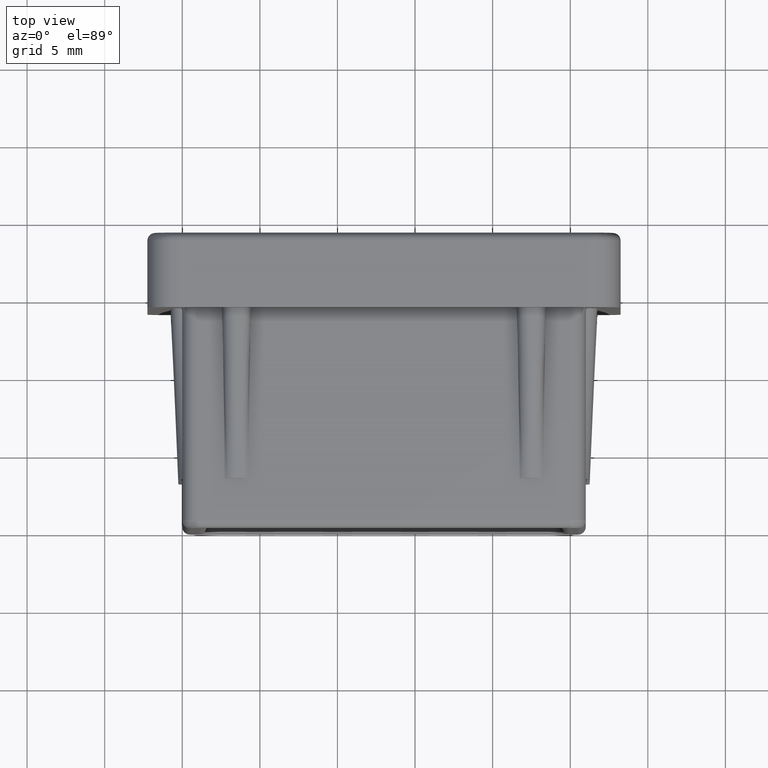
[diagram: clean part render]
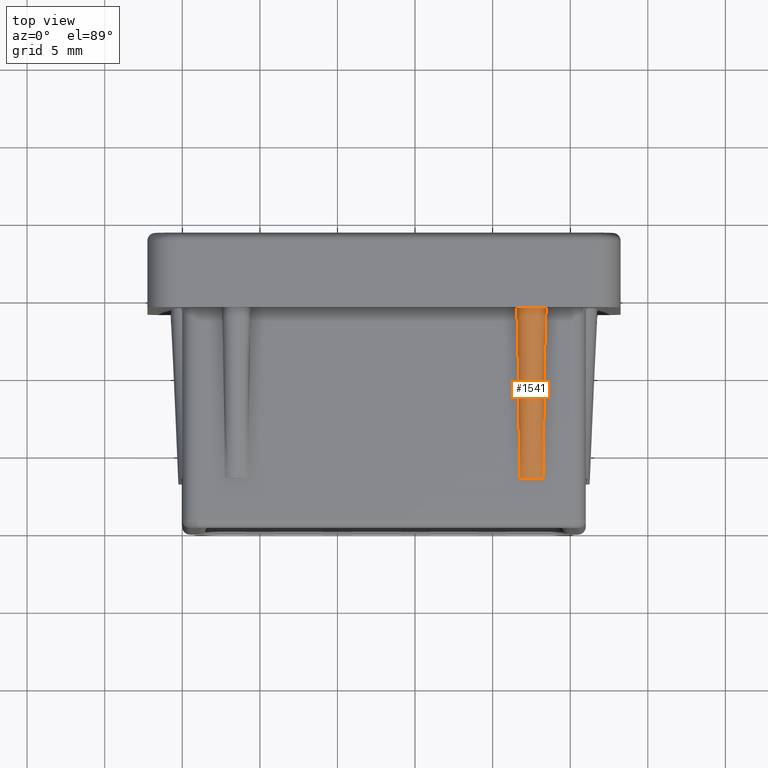
[diagram: same view with one face highlighted and labeled with its STEP entity id]
A machine part, top view. The second image highlights one B-rep face of the part: STEP entity #1541.
In plain terms, the highlighted face is a freeform B-spline surface patch.
Its self-contained STEP definition (entity closure, byte-faithful):
#20=B_SPLINE_SURFACE_WITH_KNOTS('',3,3,((#2791,#2792,#2793,#2794),(#2795,
#2796,#2797,#2798),(#2799,#2800,#2801,#2802),(#2803,#2804,#2805,#2806),
(#2807,#2808,#2809,#2810),(#2811,#2812,#2813,#2814),(#2815,#2816,#2817,
#2818),(#2819,#2820,#2821,#2822),(#2823,#2824,#2825,#2826),(#2827,#2828,
#2829,#2830),(#2831,#2832,#2833,#2834)),.UNSPECIFIED.,.F.,.F.,.F.,(4,1,
1,1,1,1,1,1,4),(4,4),(0.,0.142857142857143,0.285714285714286,0.428571428571429,
0.571428571428571,0.714285714285714,0.857142857142857,0.892857142857143,
1.),(0.,1.),.UNSPECIFIED.);
#26=B_SPLINE_CURVE_WITH_KNOTS('',3,(#2577,#2578,#2579,#2580,#2581,#2582,
#2583,#2584,#2585,#2586,#2587),.UNSPECIFIED.,.F.,.F.,(4,1,1,1,1,1,1,1,4),
(-1.,-0.892857142857143,-0.857142857142857,-0.714285714285714,-0.571428571428571,
-0.428571428571429,-0.285714285714286,-0.142857142857143,0.),
 .UNSPECIFIED.);
#115=LINE('',#2311,#247);
#117=LINE('',#2315,#249);
#247=VECTOR('',#1810,11.001022679733);
#249=VECTOR('',#1812,11.001022679733);
#444=FACE_OUTER_BOUND('',#538,.T.);
#538=EDGE_LOOP('',(#1345,#1346,#1347,#1348));
#645=CIRCLE('',#1693,1.25);
#690=VERTEX_POINT('',#2308);
#691=VERTEX_POINT('',#2310);
#692=VERTEX_POINT('',#2312);
#693=VERTEX_POINT('',#2314);
#845=EDGE_CURVE('',#690,#691,#115,.T.);
#847=EDGE_CURVE('',#692,#693,#117,.T.);
#971=EDGE_CURVE('',#693,#690,#26,.T.);
#984=EDGE_CURVE('',#691,#692,#645,.T.);
#1345=ORIENTED_EDGE('',*,*,#971,.F.);
#1346=ORIENTED_EDGE('',*,*,#847,.F.);
#1347=ORIENTED_EDGE('',*,*,#984,.F.);
#1348=ORIENTED_EDGE('',*,*,#845,.F.);
#1541=ADVANCED_FACE('',(#444),#20,.T.);
#1693=AXIS2_PLACEMENT_3D('',#2790,#2079,#2080);
#1810=DIRECTION('',(-0.0136350959694265,-0.999907037757963,-2.0183996650975E-16));
#1812=DIRECTION('',(-0.0136350959694269,0.999907037757963,-2.0183996650975E-16));
#2079=DIRECTION('center_axis',(0.,-1.,0.));
#2080=DIRECTION('ref_axis',(0.600000000000001,0.,0.799999999999999));
#2308=CARTESIAN_POINT('',(23.4,14.2,13.));
#2310=CARTESIAN_POINT('',(23.25,3.2,13.));
#2311=CARTESIAN_POINT('',(23.4,14.2,13.));
#2312=CARTESIAN_POINT('',(21.75,3.2,13.));
#2314=CARTESIAN_POINT('',(21.6,14.2,13.));
#2315=CARTESIAN_POINT('',(21.6,14.2,13.));
#2577=CARTESIAN_POINT('Ctrl Pts',(21.6,14.2,13.));
#2578=CARTESIAN_POINT('Ctrl Pts',(21.5592887492258,14.2,13.121727992348));
#2579=CARTESIAN_POINT('Ctrl Pts',(21.5387575546082,14.2,13.2950893053066));
#2580=CARTESIAN_POINT('Ctrl Pts',(21.5899283910249,14.2,13.6343892541167));
#2581=CARTESIAN_POINT('Ctrl Pts',(21.7771881666358,14.2,13.9869396711836));
#2582=CARTESIAN_POINT('Ctrl Pts',(22.2337969638565,14.2,14.2614112192167));
#2583=CARTESIAN_POINT('Ctrl Pts',(22.766162491255,14.2,14.261107892741));
#2584=CARTESIAN_POINT('Ctrl Pts',(23.2229998995588,14.2,13.9872170001885));
#2585=CARTESIAN_POINT('Ctrl Pts',(23.4727135113782,14.2,13.5168240313861));
#2586=CARTESIAN_POINT('Ctrl Pts',(23.4542816676989,14.2,13.1623039897974));
#2587=CARTESIAN_POINT('Ctrl Pts',(23.4,14.2,13.));
#2790=CARTESIAN_POINT('Origin',(22.5,3.2,12.));
#2791=CARTESIAN_POINT('Ctrl Pts',(23.4,14.2,13.));
#2792=CARTESIAN_POINT('Ctrl Pts',(23.35,10.5333333333333,13.));
#2793=CARTESIAN_POINT('Ctrl Pts',(23.3,6.86666666666667,13.));
#2794=CARTESIAN_POINT('Ctrl Pts',(23.25,3.2,13.));
#2795=CARTESIAN_POINT('Ctrl Pts',(23.4542816676989,14.2,13.1623039897974));
#2796=CARTESIAN_POINT('Ctrl Pts',(23.3656597608662,10.5333333333333,13.1235795658956));
#2797=CARTESIAN_POINT('Ctrl Pts',(23.2773360869476,6.86666666666667,13.0846887888156));
#2798=CARTESIAN_POINT('Ctrl Pts',(23.1887141801149,3.2,13.0459643649138));
#2799=CARTESIAN_POINT('Ctrl Pts',(23.4727135113782,14.2,13.5168240313861));
#2800=CARTESIAN_POINT('Ctrl Pts',(23.3343551909783,10.5333333333333,13.3867477515409));
#2801=CARTESIAN_POINT('Ctrl Pts',(23.1960263086086,6.86666666666667,13.2566672762243));
#2802=CARTESIAN_POINT('Ctrl Pts',(23.0576679882087,3.2,13.1265909963791));
#2803=CARTESIAN_POINT('Ctrl Pts',(23.2229998995588,14.2,13.9872170001885));
#2804=CARTESIAN_POINT('Ctrl Pts',(23.0961195524939,10.5333333333333,13.7280651907796));
#2805=CARTESIAN_POINT('Ctrl Pts',(22.9691840089095,6.86666666666667,13.4687151804333));
#2806=CARTESIAN_POINT('Ctrl Pts',(22.8423036618445,3.2,13.2095633710245));
#2807=CARTESIAN_POINT('Ctrl Pts',(22.766162491255,14.2,14.261107892741));
#2808=CARTESIAN_POINT('Ctrl Pts',(22.7158782026069,10.5333333333333,13.9246028204058));
#2809=CARTESIAN_POINT('Ctrl Pts',(22.6656809348588,6.86666666666666,13.5882551688101));
#2810=CARTESIAN_POINT('Ctrl Pts',(22.6153966462107,3.2,13.2517500964748));
#2811=CARTESIAN_POINT('Ctrl Pts',(22.2337969638565,14.2,14.2614112192167));
#2812=CARTESIAN_POINT('Ctrl Pts',(22.2840906894699,10.5333333333333,13.9248776903612));
#2813=CARTESIAN_POINT('Ctrl Pts',(22.3343093955242,6.86666666666667,13.5882886319536));
#2814=CARTESIAN_POINT('Ctrl Pts',(22.3846031211375,3.2,13.2517551030981));
#2815=CARTESIAN_POINT('Ctrl Pts',(21.7771881666358,14.2,13.9869396711836));
#2816=CARTESIAN_POINT('Ctrl Pts',(21.9040367200087,10.5333333333333,13.7277990949481));
#2817=CARTESIAN_POINT('Ctrl Pts',(22.0308486273964,6.86666666666665,13.4686990692499));
#2818=CARTESIAN_POINT('Ctrl Pts',(22.1576971807693,3.2,13.2095584930143));
#2819=CARTESIAN_POINT('Ctrl Pts',(21.5899283910249,14.2,13.6343892541167));
#2820=CARTESIAN_POINT('Ctrl Pts',(21.725457156015,10.5333333333333,13.472031255952));
#2821=CARTESIAN_POINT('Ctrl Pts',(21.8606460566349,6.86666666666668,13.3096891640042));
#2822=CARTESIAN_POINT('Ctrl Pts',(21.996174821625,3.2,13.1473311658396));
#2823=CARTESIAN_POINT('Ctrl Pts',(21.5387575546082,14.2,13.2950893053066));
#2824=CARTESIAN_POINT('Ctrl Pts',(21.6459717070078,10.5333333333333,13.2221327875791));
#2825=CARTESIAN_POINT('Ctrl Pts',(21.7532128334193,6.86666666666666,13.149155687983));
#2826=CARTESIAN_POINT('Ctrl Pts',(21.860426985819,3.2,13.0761991702555));
#2827=CARTESIAN_POINT('Ctrl Pts',(21.5592887492258,14.2,13.121727992348));
#2828=CARTESIAN_POINT('Ctrl Pts',(21.6384011536064,10.5333333333333,13.0926277748216));
#2829=CARTESIAN_POINT('Ctrl Pts',(21.7168519605333,6.86666666666668,13.0635734912118));
#2830=CARTESIAN_POINT('Ctrl Pts',(21.7959643649138,3.2,13.0344732736854));
#2831=CARTESIAN_POINT('Ctrl Pts',(21.6,14.2,13.));
#2832=CARTESIAN_POINT('Ctrl Pts',(21.65,10.5333333333333,13.));
#2833=CARTESIAN_POINT('Ctrl Pts',(21.7,6.86666666666667,13.));
#2834=CARTESIAN_POINT('Ctrl Pts',(21.75,3.2,13.));